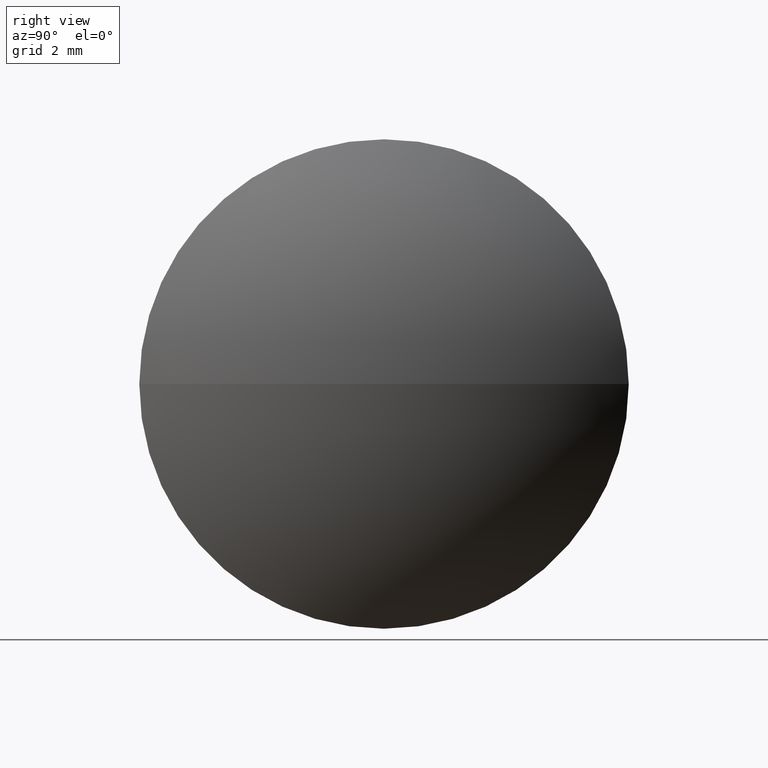
[diagram: clean part render]
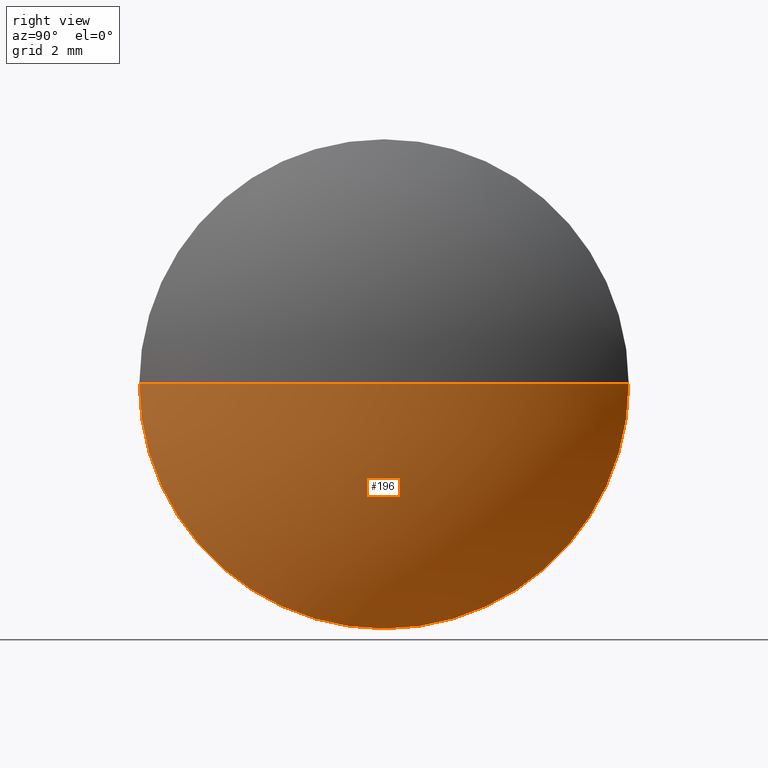
[diagram: same view with one face highlighted and labeled with its STEP entity id]
A machine part, right view. The second image highlights one B-rep face of the part: STEP entity #196.
In plain terms, the highlighted spherical surface has radius 8.34 mm.
Its self-contained STEP definition (entity closure, byte-faithful):
#1 = CIRCLE ( 'NONE', #127, 4.999999999999997300 ) ;
#2 = CARTESIAN_POINT ( 'NONE',  ( 34.78865896640257900, 24.14020197763180800, 0.0000000000000000000 ) ) ;
#11 = FACE_OUTER_BOUND ( 'NONE', #289, .T. ) ;
#31 = DIRECTION ( 'NONE',  ( -0.0000000000000000000, 0.0000000000000000000, 1.000000000000000000 ) ) ;
#36 = CARTESIAN_POINT ( 'NONE',  ( 34.78865896640257900, 19.14020197763180800, -4.999999999999997300 ) ) ;
#49 = DIRECTION ( 'NONE',  ( -1.000000000000000000, -0.0000000000000000000, -0.0000000000000000000 ) ) ;
#59 = EDGE_CURVE ( 'NONE', #83, #85, #1, .T. ) ;
#62 = VERTEX_POINT ( 'NONE', #90 ) ;
#83 = VERTEX_POINT ( 'NONE', #2 ) ;
#84 = AXIS2_PLACEMENT_3D ( 'NONE', #251, #49, #109 ) ;
#85 = VERTEX_POINT ( 'NONE', #36 ) ;
#90 = CARTESIAN_POINT ( 'NONE',  ( 34.78865896640257900, 14.14020197763181000, -6.123233995736766300E-016 ) ) ;
#107 = VERTEX_POINT ( 'NONE', #221 ) ;
#109 = DIRECTION ( 'NONE',  ( 0.0000000000000000000, 0.0000000000000000000, 1.000000000000000000 ) ) ;
#119 = DIRECTION ( 'NONE',  ( -1.000000000000000000, -0.0000000000000000000, -0.0000000000000000000 ) ) ;
#122 = AXIS2_PLACEMENT_3D ( 'NONE', #202, #257, #304 ) ;
#127 = AXIS2_PLACEMENT_3D ( 'NONE', #213, #119, #296 ) ;
#147 = AXIS2_PLACEMENT_3D ( 'NONE', #195, #321, #336 ) ;
#158 = AXIS2_PLACEMENT_3D ( 'NONE', #341, #31, #291 ) ;
#170 = CIRCLE ( 'NONE', #158, 8.340007507507504400 ) ;
#179 = EDGE_CURVE ( 'NONE', #85, #62, #284, .T. ) ;
#195 = CARTESIAN_POINT ( 'NONE',  ( 28.11365145889507000, 19.14020197763180800, 0.0000000000000000000 ) ) ;
#196 = ADVANCED_FACE ( 'NONE', ( #11 ), #333, .T. ) ;
#199 = ORIENTED_EDGE ( 'NONE', *, *, #334, .F. ) ;
#202 = CARTESIAN_POINT ( 'NONE',  ( 28.11365145889507000, 19.14020197763180800, 0.0000000000000000000 ) ) ;
#204 = ORIENTED_EDGE ( 'NONE', *, *, #179, .F. ) ;
#213 = CARTESIAN_POINT ( 'NONE',  ( 34.78865896640257900, 19.14020197763180800, 0.0000000000000000000 ) ) ;
#221 = CARTESIAN_POINT ( 'NONE',  ( 36.45365896640257800, 19.14020197763180800, 0.0000000000000000000 ) ) ;
#225 = EDGE_CURVE ( 'NONE', #107, #62, #232, .T. ) ;
#232 = CIRCLE ( 'NONE', #122, 8.340007507507508000 ) ;
#241 = ORIENTED_EDGE ( 'NONE', *, *, #59, .F. ) ;
#251 = CARTESIAN_POINT ( 'NONE',  ( 34.78865896640257900, 19.14020197763180800, 0.0000000000000000000 ) ) ;
#257 = DIRECTION ( 'NONE',  ( 0.0000000000000000000, 1.224646799147353200E-016, -1.000000000000000000 ) ) ;
#284 = CIRCLE ( 'NONE', #84, 4.999999999999997300 ) ;
#289 = EDGE_LOOP ( 'NONE', ( #199, #302, #204, #241 ) ) ;
#291 = DIRECTION ( 'NONE',  ( 1.000000000000000000, 0.0000000000000000000, 0.0000000000000000000 ) ) ;
#296 = DIRECTION ( 'NONE',  ( 0.0000000000000000000, 0.0000000000000000000, 1.000000000000000000 ) ) ;
#302 = ORIENTED_EDGE ( 'NONE', *, *, #225, .T. ) ;
#304 = DIRECTION ( 'NONE',  ( 0.0000000000000000000, 1.000000000000000000, 1.224646799147353000E-016 ) ) ;
#321 = DIRECTION ( 'NONE',  ( -0.0000000000000000000, 0.0000000000000000000, -1.000000000000000000 ) ) ;
#333 = SPHERICAL_SURFACE ( 'NONE', #147, 8.340007507507506200 ) ;
#334 = EDGE_CURVE ( 'NONE', #107, #83, #170, .T. ) ;
#336 = DIRECTION ( 'NONE',  ( 0.0000000000000000000, 1.000000000000000000, 0.0000000000000000000 ) ) ;
#341 = CARTESIAN_POINT ( 'NONE',  ( 28.11365145889507000, 19.14020197763180800, 0.0000000000000000000 ) ) ;